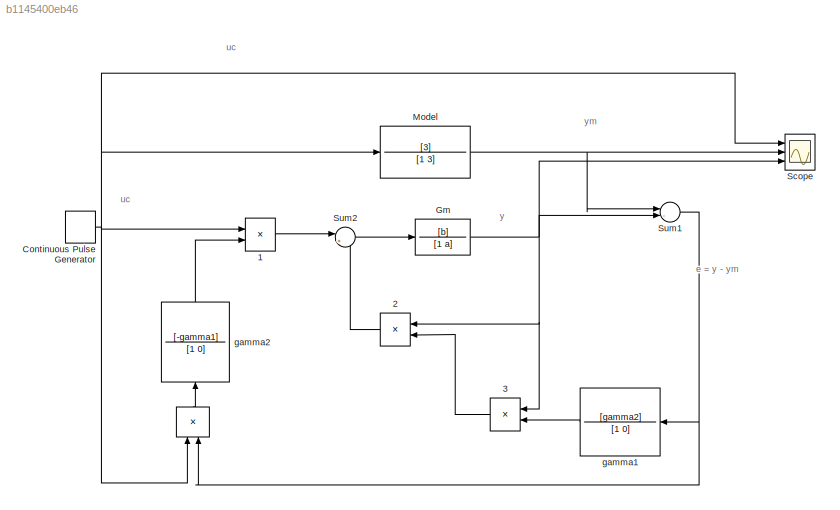
MODEL slx_b1145400eb46
KIND model
CONFIG AbsTol = auto
CONFIG EnableMultiTasking = off
CONFIG FixedStep = auto
CONFIG MaxStep = auto
CONFIG MinStep = auto
CONFIG RelTol = 1e-3
CONFIG SampleTimeConstraint = Unconstrained
CONFIG Solver = VariableStepAuto
CONFIG SolverName = VariableStepAuto
CONFIG StartTime = 0.0
CONFIG StopTime = 50
BLOCK [Product]  
  InputSameDT = off
  OutDataTypeStr = Inherit: Inherit via internal rule
  Ports = [2, 1]
  RndMeth = Floor
  SaturateOnIntegerOverflow = off
BLOCK [Product]  1
  InputSameDT = off
  OutDataTypeStr = Inherit: Inherit via internal rule
  Ports = [2, 1]
  RndMeth = Floor
  SaturateOnIntegerOverflow = off
BLOCK [Product]  2
  InputSameDT = off
  OutDataTypeStr = Inherit: Inherit via internal rule
  Ports = [2, 1]
  RndMeth = Floor
  SaturateOnIntegerOverflow = off
BLOCK [Product]  3
  InputSameDT = off
  OutDataTypeStr = Inherit: Inherit via internal rule
  Ports = [2, 1]
  RndMeth = Floor
  SaturateOnIntegerOverflow = off
BLOCK [DiscretePulseGenerator] Continuous Pulse Generator
  Period = 20
  Ports = [0, 1]
  PulseType = Time based
  PulseWidth = 50
BLOCK [TransferFcn] Gm  
  Denominator = [1 a]
  Numerator = [b]
BLOCK [TransferFcn] Model
  Denominator = [1 3]
  Numerator = [3]
BLOCK [Scope] Scope
  Floating = off
  NumInputPorts = 3
  Ports = [3]
  ScopeSpecificationString = Simulink.scopes.TimeScopeBlockCfg('CurrentConfiguration', extmgr.ConfigurationSet(extmgr.Configuration('Core','General UI',true),extmgr.Configuration('Core','Source UI',true),extmgr.Configuration('Sources','WiredSimulink',true),extmgr.Configuration('Visuals','Time Domain',true,'SerializedDisplays',{struct('MinYLimReal','-65194066.80474','MaxYLimReal','586744196.41498','YLabelReal','','MinYLimMag',...<+1469ch>
BLOCK [Sum] Sum1
  IconShape = round
  InputSameDT = off
  Inputs = |-+
  OutDataTypeStr = Inherit: Inherit via internal rule
  Ports = [2, 1]
  SaturateOnIntegerOverflow = off
BLOCK [Sum] Sum2
  IconShape = round
  InputSameDT = off
  Inputs = |+-
  OutDataTypeStr = Inherit: Inherit via internal rule
  Ports = [2, 1]
  SaturateOnIntegerOverflow = off
BLOCK [TransferFcn] gamma1
  Denominator = [1 0]
  Numerator = [gamma2]
BLOCK [TransferFcn] gamma2 
  Denominator = [1 0]
  Numerator = [-gamma1]
ANNOTATION (root): e = y - ym
ANNOTATION (root): uc
ANNOTATION (root): y
ANNOTATION (root): ym
LINE  1:1 -> Sum2:1
LINE  2:1 -> Sum2:2
LINE  3:1 ->  2:2
LINE  :1 -> gamma2 :1
NET Continuous Pulse Generator:1 ->  1:1,  :1, Model:1, Scope:1
NET Gm  :1 ->  2:1,  3:1, Scope:3, Sum1:2
NET Model:1 -> Scope:2, Sum1:1
NET Sum1:1 ->  :2, gamma1:1
LINE Sum2:1 -> Gm  :1
LINE gamma1:1 ->  3:2
LINE gamma2 :1 ->  1:2
note: NET lines group one-source signal fan-out (src -> all destinations, sorted); 1:1 wires keep LINE
